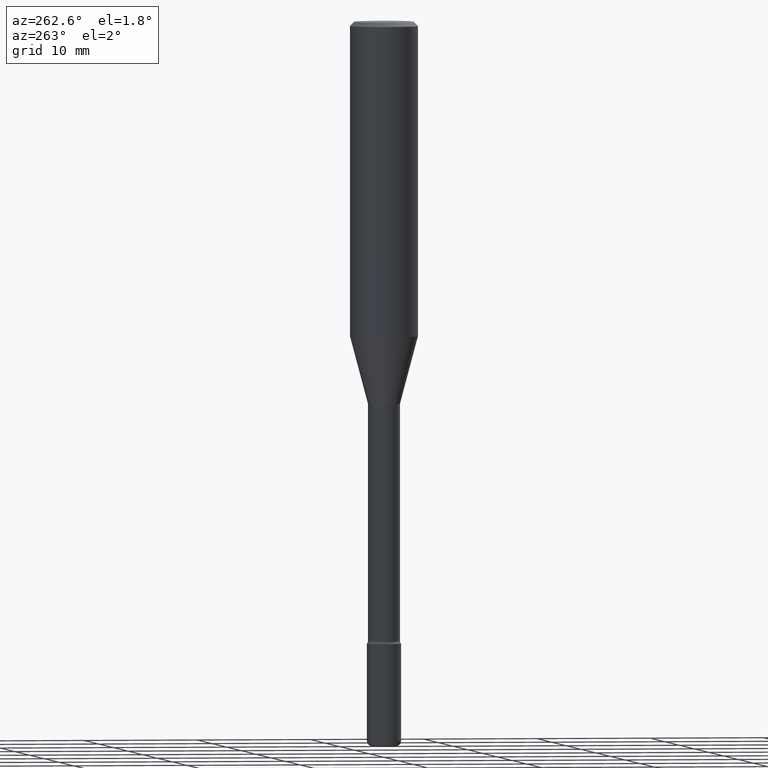
[diagram: clean part render]
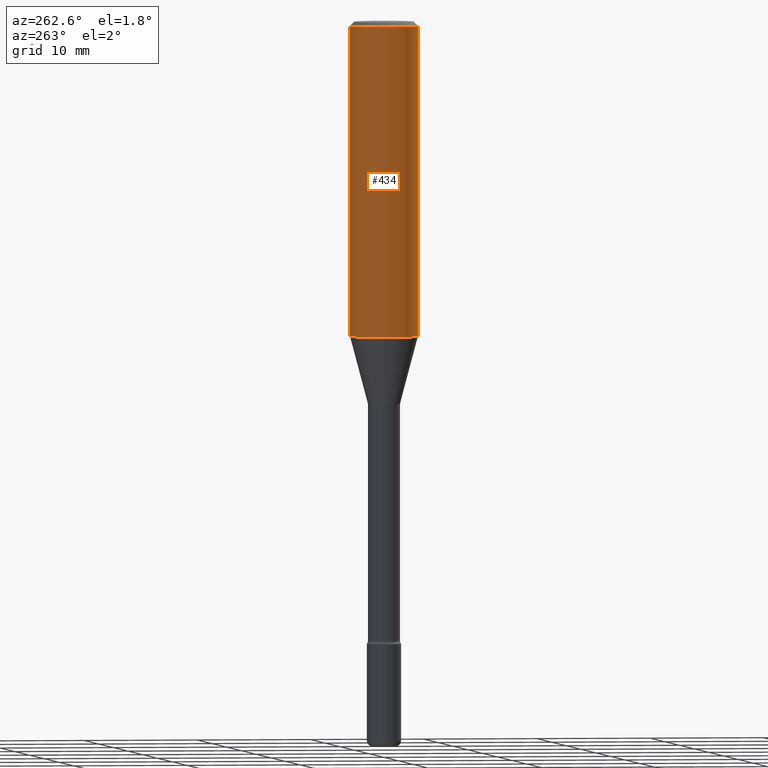
[diagram: same view with one face highlighted and labeled with its STEP entity id]
A machine part, auxiliary view. The second image highlights one B-rep face of the part: STEP entity #434.
In plain terms, the highlighted cylindrical surface (edge-blend (fillet) strip) has radius 2.9997 mm, axis along (-0, 0, 1).
Its self-contained STEP definition (entity closure, byte-faithful):
#1 = CIRCLE ( 'NONE', #28, 0.1180999999999999966 ) ;
#3 = CARTESIAN_POINT ( 'NONE',  ( -8.246878922347479668E-16, -0.1180999999999999966, 8.904434295473012272E-16 ) ) ;
#8 = ORIENTED_EDGE ( 'NONE', *, *, #509, .F. ) ;
#13 = DIRECTION ( 'NONE',  ( -2.445314574720221452E-29, 3.491702207079214016E-15, 1.000000000000000000 ) ) ;
#28 = AXIS2_PLACEMENT_3D ( 'NONE', #200, #553, #417 ) ;
#57 = ORIENTED_EDGE ( 'NONE', *, *, #91, .T. ) ;
#67 = EDGE_LOOP ( 'NONE', ( #8, #57, #441, #513 ) ) ;
#70 = VERTEX_POINT ( 'NONE', #288 ) ;
#77 = CIRCLE ( 'NONE', #380, 0.1180999999999999966 ) ;
#85 = VERTEX_POINT ( 'NONE', #285 ) ;
#91 = EDGE_CURVE ( 'NONE', #266, #398, #77, .T. ) ;
#104 = VECTOR ( 'NONE', #212, 39.37007874015748143 ) ;
#120 = VECTOR ( 'NONE', #151, 39.37007874015748143 ) ;
#138 = LINE ( 'NONE', #3, #104 ) ;
#151 = DIRECTION ( 'NONE',  ( -2.445314574720221172E-29, 3.491702207079214016E-15, 1.000000000000000000 ) ) ;
#157 = DIRECTION ( 'NONE',  ( -6.982962677686265922E-15, -1.000000000000000000, 3.469747663417777397E-15 ) ) ;
#184 = EDGE_CURVE ( 'NONE', #398, #85, #138, .T. ) ;
#200 = CARTESIAN_POINT ( 'NONE',  ( 3.667971862080338817E-31, -5.237553310618831452E-17, -0.01500000000000002720 ) ) ;
#212 = DIRECTION ( 'NONE',  ( -2.445314574720221172E-29, 3.491702207079214016E-15, 1.000000000000000000 ) ) ;
#230 = CARTESIAN_POINT ( 'NONE',  ( -8.246878922347212441E-16, -0.1181000000000037714, -1.085273619446188276 ) ) ;
#232 = CYLINDRICAL_SURFACE ( 'NONE', #477, 0.1180999999999999966 ) ;
#235 = FACE_OUTER_BOUND ( 'NONE', #67, .T. ) ;
#240 = LINE ( 'NONE', #468, #120 ) ;
#266 = VERTEX_POINT ( 'NONE', #346 ) ;
#285 = CARTESIAN_POINT ( 'NONE',  ( -8.246878922347475723E-16, -0.1181000000000000522, -0.01499999999999961607 ) ) ;
#288 = CARTESIAN_POINT ( 'NONE',  ( 8.391509709327049197E-16, 0.1180999999999999411, -0.01500000000000044006 ) ) ;
#346 = CARTESIAN_POINT ( 'NONE',  ( 8.391509709327049197E-16, 0.1180999999999962358, -1.085273619446189164 ) ) ;
#364 = DIRECTION ( 'NONE',  ( -6.982962677686265922E-15, -1.000000000000000000, 3.491702207079213622E-15 ) ) ;
#380 = AXIS2_PLACEMENT_3D ( 'NONE', #507, #558, #157 ) ;
#398 = VERTEX_POINT ( 'NONE', #230 ) ;
#402 = CARTESIAN_POINT ( 'NONE',  ( -1.169113584055446105E-44, 1.669184350826100908E-30, 4.780733988912460139E-16 ) ) ;
#417 = DIRECTION ( 'NONE',  ( -6.982962677686265922E-15, -1.000000000000000000, 3.487819265831411744E-15 ) ) ;
#434 = ADVANCED_FACE ( 'NONE', ( #235 ), #232, .T. ) ;
#441 = ORIENTED_EDGE ( 'NONE', *, *, #184, .T. ) ;
#467 = EDGE_CURVE ( 'NONE', #70, #85, #1, .T. ) ;
#468 = CARTESIAN_POINT ( 'NONE',  ( 8.391509709326781971E-16, 0.1180999999999999966, 6.570336823519088696E-17 ) ) ;
#477 = AXIS2_PLACEMENT_3D ( 'NONE', #402, #13, #364 ) ;
#507 = CARTESIAN_POINT ( 'NONE',  ( 2.653835399191132044E-29, -3.789452292305104081E-15, -1.085273619446188720 ) ) ;
#509 = EDGE_CURVE ( 'NONE', #266, #70, #240, .T. ) ;
#513 = ORIENTED_EDGE ( 'NONE', *, *, #467, .F. ) ;
#553 = DIRECTION ( 'NONE',  ( -2.445314574720221452E-29, 3.491702207079214016E-15, 1.000000000000000000 ) ) ;
#558 = DIRECTION ( 'NONE',  ( -2.445314574720221452E-29, 3.491702207079214016E-15, 1.000000000000000000 ) ) ;